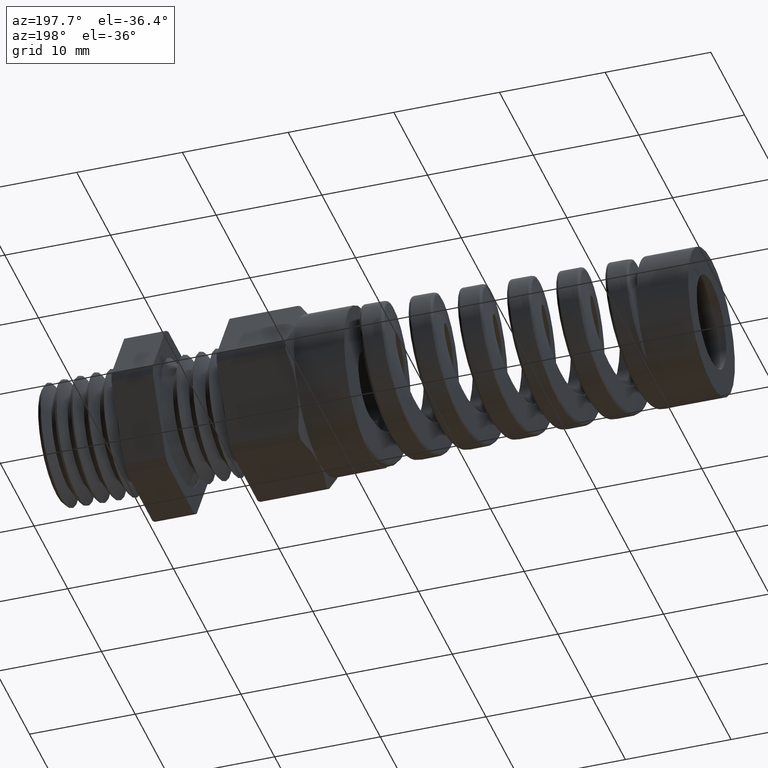
[diagram: clean part render]
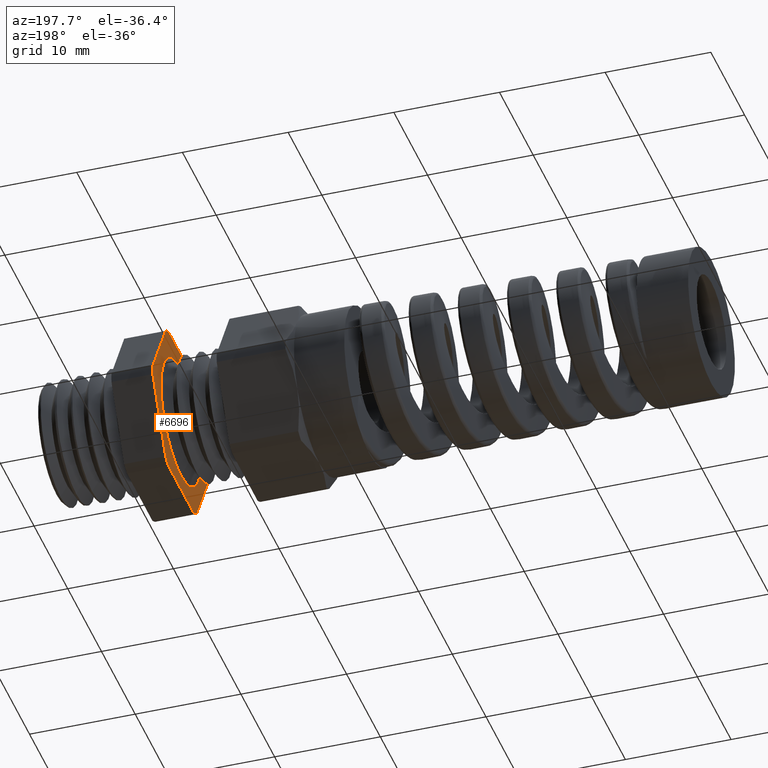
[diagram: same view with one face highlighted and labeled with its STEP entity id]
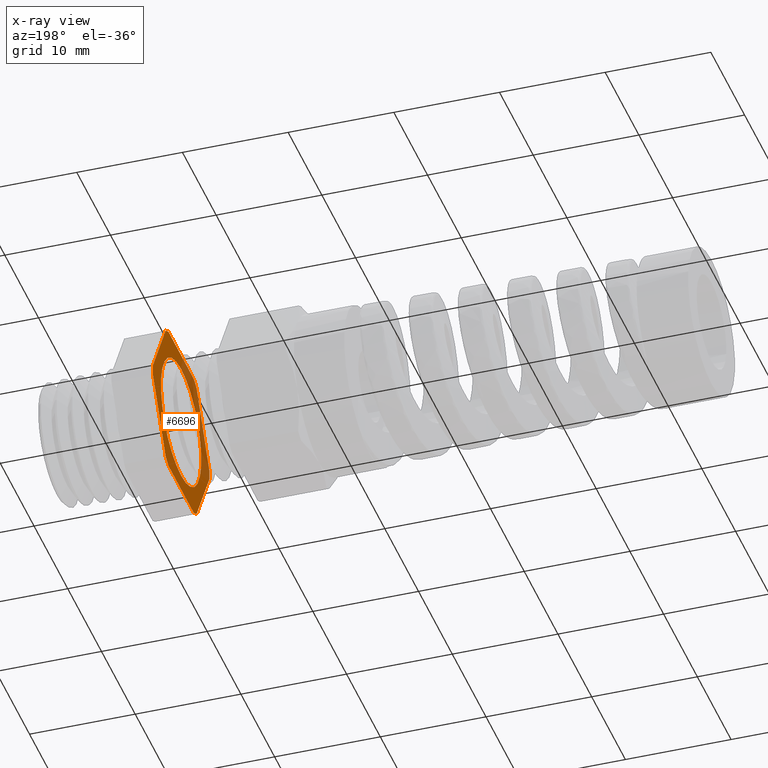
[diagram: x-ray of the same camera — body ghosted, the highlighted face saturated]
A machine part, auxiliary view. The second image highlights one B-rep face of the part: STEP entity #6696.
The next image is the same camera in x-ray: the body ghosted, the highlighted face saturated — about 28% of this face is hidden behind the body in this view.
In plain terms, the highlighted planar face has unit normal (1, 0, 0).
Its self-contained STEP definition (entity closure, byte-faithful):
#856 = CIRCLE ( 'NONE', #896, 0.3303999999999999700 ) ;
#861 = CARTESIAN_POINT ( 'NONE',  ( -0.1542288557213930500, -0.1487923385124383400, -0.2949999999999998700 ) ) ;
#881 = CARTESIAN_POINT ( 'NONE',  ( -0.1542288557213930500, 0.1810813248601902100, -0.2763579450402652800 ) ) ;
#882 = CARTESIAN_POINT ( 'NONE',  ( -0.1542288557213930500, 0.1487923385124383400, -0.2949999999999999800 ) ) ;
#883 = DIRECTION ( 'NONE',  ( 0.0000000000000000000, 1.000000000000000000, 0.0000000000000000000 ) ) ;
#884 = VECTOR ( 'NONE', #883, 39.37007874015748100 ) ;
#885 = CARTESIAN_POINT ( 'NONE',  ( -0.1542288557213930500, 0.2349999999999999900, -0.2949999999999999800 ) ) ;
#886 = LINE ( 'NONE', #885, #884 ) ;
#893 = DIRECTION ( 'NONE',  ( 0.0000000000000000000, 0.0000000000000000000, 1.000000000000000000 ) ) ;
#894 = DIRECTION ( 'NONE',  ( -1.000000000000000000, 0.0000000000000000000, 0.0000000000000000000 ) ) ;
#895 = CARTESIAN_POINT ( 'NONE',  ( -0.1542288557213930500, 0.0000000000000000000, 0.0000000000000000000 ) ) ;
#896 = AXIS2_PLACEMENT_3D ( 'NONE', #895, #894, #893 ) ;
#2549 = VERTEX_POINT ( 'NONE', #8361 ) ;
#2609 = EDGE_CURVE ( 'NONE', #7371, #2658, #8360, .T. ) ;
#2628 = VERTEX_POINT ( 'NONE', #8356 ) ;
#2630 = ORIENTED_EDGE ( 'NONE', *, *, #2609, .F. ) ;
#2650 = ORIENTED_EDGE ( 'NONE', *, *, #2675, .T. ) ;
#2658 = VERTEX_POINT ( 'NONE', #8355 ) ;
#2675 = EDGE_CURVE ( 'NONE', #2628, #2658, #8354, .T. ) ;
#2934 = EDGE_LOOP ( 'NONE', ( #3102, #2650, #2630, #7366, #7368, #6246, #6342, #5121, #7445, #7432, #7434, #7421 ) ) ;
#3102 = ORIENTED_EDGE ( 'NONE', *, *, #3128, .F. ) ;
#3128 = EDGE_CURVE ( 'NONE', #2628, #2549, #8349, .T. ) ;
#4247 = ORIENTED_EDGE ( 'NONE', *, *, #8031, .T. ) ;
#4482 = EDGE_CURVE ( 'NONE', #8033, #8032, #8373, .T. ) ;
#4546 = ORIENTED_EDGE ( 'NONE', *, *, #4482, .T. ) ;
#4655 = EDGE_LOOP ( 'NONE', ( #4546, #4247 ) ) ;
#4693 = DIRECTION ( 'NONE',  ( 0.0000000000000000000, 0.0000000000000000000, -1.000000000000000000 ) ) ;
#4694 = DIRECTION ( 'NONE',  ( 1.000000000000000000, 0.0000000000000000000, 0.0000000000000000000 ) ) ;
#4695 = CARTESIAN_POINT ( 'NONE',  ( -0.1542288557213930500, 0.0000000000000000000, 0.0000000000000000000 ) ) ;
#4696 = AXIS2_PLACEMENT_3D ( 'NONE', #4695, #4694, #4693 ) ;
#4697 = CIRCLE ( 'NONE', #4696, 0.2350000000000000100 ) ;
#4753 = CARTESIAN_POINT ( 'NONE',  ( -0.1542288557213930500, 0.0000000000000000000, -0.2350000000000000100 ) ) ;
#4754 = CARTESIAN_POINT ( 'NONE',  ( -0.1542288557213930500, 2.877919977996280400E-017, 0.2350000000000000100 ) ) ;
#5121 = ORIENTED_EDGE ( 'NONE', *, *, #7447, .T. ) ;
#5332 = VERTEX_POINT ( 'NONE', #8416 ) ;
#6246 = ORIENTED_EDGE ( 'NONE', *, *, #7361, .T. ) ;
#6342 = ORIENTED_EDGE ( 'NONE', *, *, #7358, .F. ) ;
#6375 = VERTEX_POINT ( 'NONE', #8409 ) ;
#6696 = ADVANCED_FACE ( 'NONE', ( #8401, #8400 ), #8399, .F. ) ;
#6736 = VERTEX_POINT ( 'NONE', #8394 ) ;
#7358 = EDGE_CURVE ( 'NONE', #5332, #6375, #8457, .T. ) ;
#7361 = EDGE_CURVE ( 'NONE', #7364, #6375, #8447, .T. ) ;
#7363 = EDGE_CURVE ( 'NONE', #7371, #7365, #8437, .T. ) ;
#7364 = VERTEX_POINT ( 'NONE', #8432 ) ;
#7365 = VERTEX_POINT ( 'NONE', #8431 ) ;
#7366 = ORIENTED_EDGE ( 'NONE', *, *, #7363, .T. ) ;
#7368 = ORIENTED_EDGE ( 'NONE', *, *, #7370, .F. ) ;
#7370 = EDGE_CURVE ( 'NONE', #7364, #7365, #8429, .T. ) ;
#7371 = VERTEX_POINT ( 'NONE', #8484 ) ;
#7421 = ORIENTED_EDGE ( 'NONE', *, *, #7427, .T. ) ;
#7424 = VERTEX_POINT ( 'NONE', #861 ) ;
#7427 = EDGE_CURVE ( 'NONE', #7424, #2549, #856, .T. ) ;
#7431 = EDGE_CURVE ( 'NONE', #7424, #7435, #886, .T. ) ;
#7432 = ORIENTED_EDGE ( 'NONE', *, *, #7444, .T. ) ;
#7434 = ORIENTED_EDGE ( 'NONE', *, *, #7431, .F. ) ;
#7435 = VERTEX_POINT ( 'NONE', #882 ) ;
#7436 = VERTEX_POINT ( 'NONE', #881 ) ;
#7444 = EDGE_CURVE ( 'NONE', #7436, #7435, #8532, .T. ) ;
#7445 = ORIENTED_EDGE ( 'NONE', *, *, #7446, .F. ) ;
#7446 = EDGE_CURVE ( 'NONE', #7436, #6736, #8533, .T. ) ;
#7447 = EDGE_CURVE ( 'NONE', #5332, #6736, #8595, .T. ) ;
#8031 = EDGE_CURVE ( 'NONE', #8032, #8033, #4697, .T. ) ;
#8032 = VERTEX_POINT ( 'NONE', #4754 ) ;
#8033 = VERTEX_POINT ( 'NONE', #4753 ) ;
#8346 = DIRECTION ( 'NONE',  ( 0.0000000000000000000, 0.5000000000000002200, -0.8660254037844383700 ) ) ;
#8347 = VECTOR ( 'NONE', #8346, 39.37007874015748100 ) ;
#8348 = CARTESIAN_POINT ( 'NONE',  ( -0.1542288557213930500, -0.1967274941164093600, -0.2492579849446716600 ) ) ;
#8349 = LINE ( 'NONE', #8348, #8347 ) ;
#8350 = DIRECTION ( 'NONE',  ( 0.0000000000000000000, 0.0000000000000000000, 1.000000000000000000 ) ) ;
#8351 = DIRECTION ( 'NONE',  ( -1.000000000000000000, 0.0000000000000000000, 0.0000000000000000000 ) ) ;
#8352 = CARTESIAN_POINT ( 'NONE',  ( -0.1542288557213930500, 0.0000000000000000000, 0.0000000000000000000 ) ) ;
#8353 = AXIS2_PLACEMENT_3D ( 'NONE', #8352, #8351, #8350 ) ;
#8354 = CIRCLE ( 'NONE', #8353, 0.3303999999999999700 ) ;
#8355 = CARTESIAN_POINT ( 'NONE',  ( -0.1542288557213930500, -0.3298736633726285800, 0.01864205495973485600 ) ) ;
#8356 = CARTESIAN_POINT ( 'NONE',  ( -0.1542288557213930500, -0.3298736633726285200, -0.01864205495973509500 ) ) ;
#8357 = DIRECTION ( 'NONE',  ( 0.0000000000000000000, -0.5000000000000004400, -0.8660254037844382600 ) ) ;
#8358 = VECTOR ( 'NONE', #8357, 39.37007874015748900 ) ;
#8359 = CARTESIAN_POINT ( 'NONE',  ( -0.1542288557213930500, -0.1967274941164092200, 0.2492579849446718000 ) ) ;
#8360 = LINE ( 'NONE', #8359, #8358 ) ;
#8361 = CARTESIAN_POINT ( 'NONE',  ( -0.1542288557213930500, -0.1810813248601904100, -0.2763579450402650600 ) ) ;
#8369 = DIRECTION ( 'NONE',  ( 0.0000000000000000000, 0.0000000000000000000, -1.000000000000000000 ) ) ;
#8370 = DIRECTION ( 'NONE',  ( 1.000000000000000000, 0.0000000000000000000, 0.0000000000000000000 ) ) ;
#8371 = CARTESIAN_POINT ( 'NONE',  ( -0.1542288557213930500, 0.0000000000000000000, 0.0000000000000000000 ) ) ;
#8372 = AXIS2_PLACEMENT_3D ( 'NONE', #8371, #8370, #8369 ) ;
#8373 = CIRCLE ( 'NONE', #8372, 0.2350000000000000100 ) ;
#8394 = CARTESIAN_POINT ( 'NONE',  ( -0.1542288557213930500, 0.3298736633726285800, -0.01864205495973480400 ) ) ;
#8395 = DIRECTION ( 'NONE',  ( 0.0000000000000000000, 0.0000000000000000000, -1.000000000000000000 ) ) ;
#8396 = DIRECTION ( 'NONE',  ( 1.000000000000000000, 0.0000000000000000000, 0.0000000000000000000 ) ) ;
#8397 = CARTESIAN_POINT ( 'NONE',  ( -0.1542288557213930500, 0.2349999999999999900, 0.0000000000000000000 ) ) ;
#8398 = AXIS2_PLACEMENT_3D ( 'NONE', #8397, #8396, #8395 ) ;
#8399 = PLANE ( 'NONE',  #8398 ) ;
#8400 = FACE_OUTER_BOUND ( 'NONE', #2934, .T. ) ;
#8401 = FACE_BOUND ( 'NONE', #4655, .T. ) ;
#8409 = CARTESIAN_POINT ( 'NONE',  ( -0.1542288557213930500, 0.1810813248601899900, 0.2763579450402654000 ) ) ;
#8416 = CARTESIAN_POINT ( 'NONE',  ( -0.1542288557213930500, 0.3298736633726285800, 0.01864205495973450200 ) ) ;
#8426 = DIRECTION ( 'NONE',  ( 0.0000000000000000000, -1.000000000000000000, 0.0000000000000000000 ) ) ;
#8427 = VECTOR ( 'NONE', #8426, 39.37007874015748100 ) ;
#8428 = CARTESIAN_POINT ( 'NONE',  ( -0.1542288557213930500, 0.2349999999999999900, 0.2950000000000000400 ) ) ;
#8429 = LINE ( 'NONE', #8428, #8427 ) ;
#8431 = CARTESIAN_POINT ( 'NONE',  ( -0.1542288557213930500, -0.1487923385124382800, 0.2950000000000000400 ) ) ;
#8432 = CARTESIAN_POINT ( 'NONE',  ( -0.1542288557213930500, 0.1487923385124382000, 0.2950000000000000400 ) ) ;
#8433 = DIRECTION ( 'NONE',  ( 0.0000000000000000000, 0.0000000000000000000, 1.000000000000000000 ) ) ;
#8434 = DIRECTION ( 'NONE',  ( -1.000000000000000000, 0.0000000000000000000, 0.0000000000000000000 ) ) ;
#8435 = CARTESIAN_POINT ( 'NONE',  ( -0.1542288557213930500, 0.0000000000000000000, 0.0000000000000000000 ) ) ;
#8436 = AXIS2_PLACEMENT_3D ( 'NONE', #8435, #8434, #8433 ) ;
#8437 = CIRCLE ( 'NONE', #8436, 0.3303999999999999700 ) ;
#8443 = DIRECTION ( 'NONE',  ( 0.0000000000000000000, 0.0000000000000000000, 1.000000000000000000 ) ) ;
#8444 = DIRECTION ( 'NONE',  ( -1.000000000000000000, 0.0000000000000000000, 0.0000000000000000000 ) ) ;
#8445 = CARTESIAN_POINT ( 'NONE',  ( -0.1542288557213930500, 0.0000000000000000000, 0.0000000000000000000 ) ) ;
#8446 = AXIS2_PLACEMENT_3D ( 'NONE', #8445, #8444, #8443 ) ;
#8447 = CIRCLE ( 'NONE', #8446, 0.3303999999999999700 ) ;
#8454 = DIRECTION ( 'NONE',  ( 0.0000000000000000000, -0.5000000000000000000, 0.8660254037844386000 ) ) ;
#8455 = VECTOR ( 'NONE', #8454, 39.37007874015748100 ) ;
#8456 = CARTESIAN_POINT ( 'NONE',  ( -0.1542288557213930500, 0.3142274941164093200, 0.04574201505532841200 ) ) ;
#8457 = LINE ( 'NONE', #8456, #8455 ) ;
#8484 = CARTESIAN_POINT ( 'NONE',  ( -0.1542288557213930500, -0.1810813248601900700, 0.2763579450402652800 ) ) ;
#8528 = DIRECTION ( 'NONE',  ( 0.0000000000000000000, 0.0000000000000000000, 1.000000000000000000 ) ) ;
#8529 = DIRECTION ( 'NONE',  ( -1.000000000000000000, 0.0000000000000000000, 0.0000000000000000000 ) ) ;
#8530 = CARTESIAN_POINT ( 'NONE',  ( -0.1542288557213930500, 0.0000000000000000000, 0.0000000000000000000 ) ) ;
#8531 = AXIS2_PLACEMENT_3D ( 'NONE', #8530, #8529, #8528 ) ;
#8532 = CIRCLE ( 'NONE', #8531, 0.3303999999999999700 ) ;
#8533 = LINE ( 'NONE', #8598, #8597 ) ;
#8591 = DIRECTION ( 'NONE',  ( 0.0000000000000000000, 0.0000000000000000000, 1.000000000000000000 ) ) ;
#8592 = DIRECTION ( 'NONE',  ( -1.000000000000000000, 0.0000000000000000000, 0.0000000000000000000 ) ) ;
#8593 = CARTESIAN_POINT ( 'NONE',  ( -0.1542288557213930500, 0.0000000000000000000, 0.0000000000000000000 ) ) ;
#8594 = AXIS2_PLACEMENT_3D ( 'NONE', #8593, #8592, #8591 ) ;
#8595 = CIRCLE ( 'NONE', #8594, 0.3303999999999999700 ) ;
#8596 = DIRECTION ( 'NONE',  ( 0.0000000000000000000, 0.5000000000000002200, 0.8660254037844384900 ) ) ;
#8597 = VECTOR ( 'NONE', #8596, 39.37007874015748900 ) ;
#8598 = CARTESIAN_POINT ( 'NONE',  ( -0.1542288557213930500, 0.3142274941164094300, -0.04574201505532851700 ) ) ;